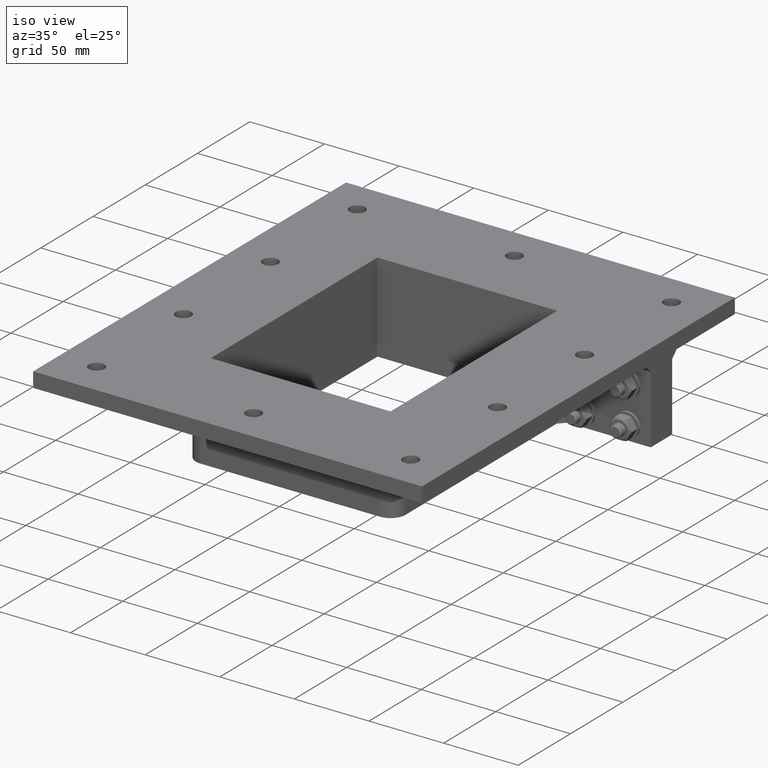
[diagram: clean part render]
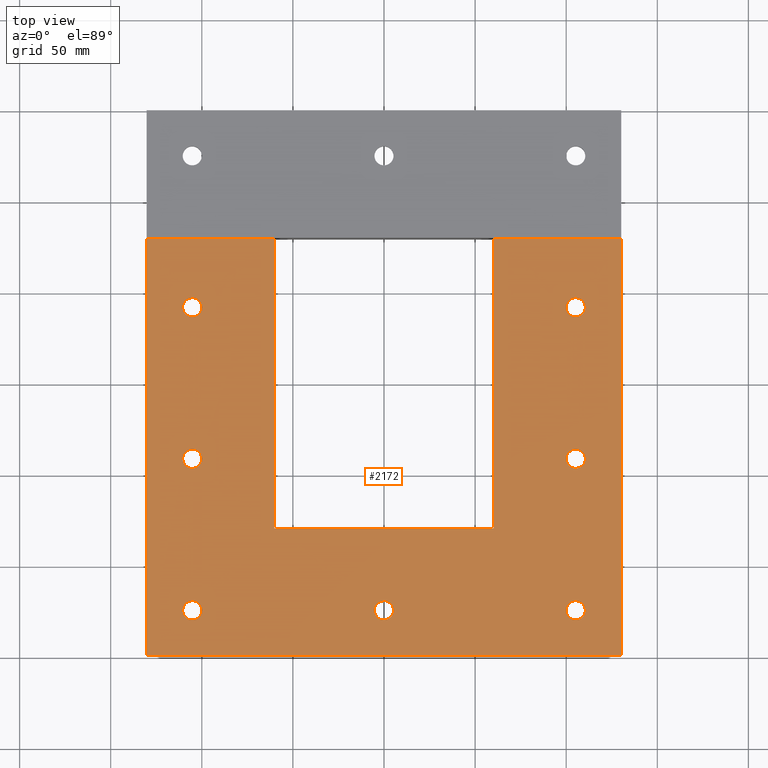
[diagram: tour spotlight — one face highlighted and labeled with its STEP entity id]
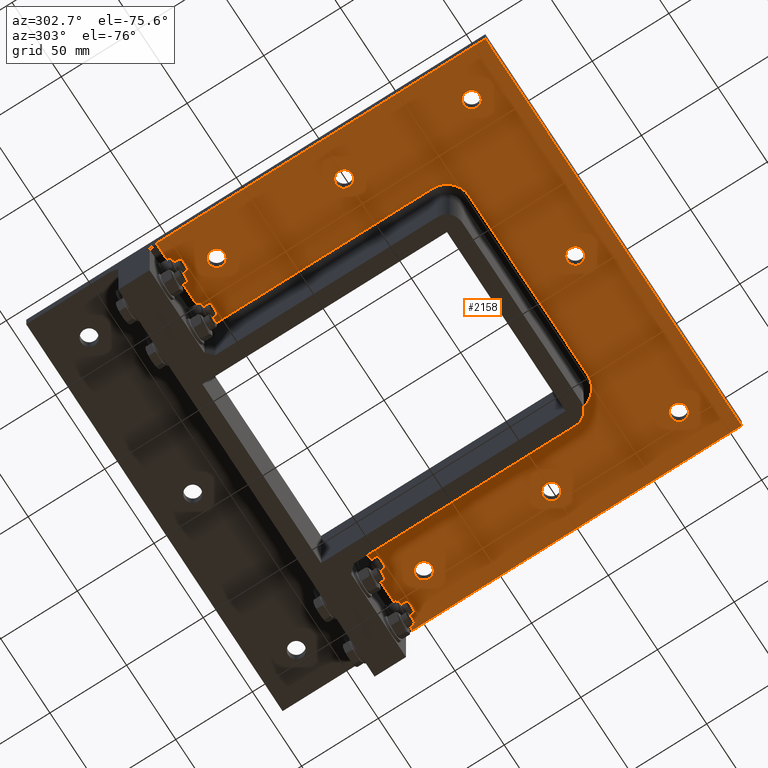
[diagram: tour spotlight — one face highlighted and labeled with its STEP entity id]
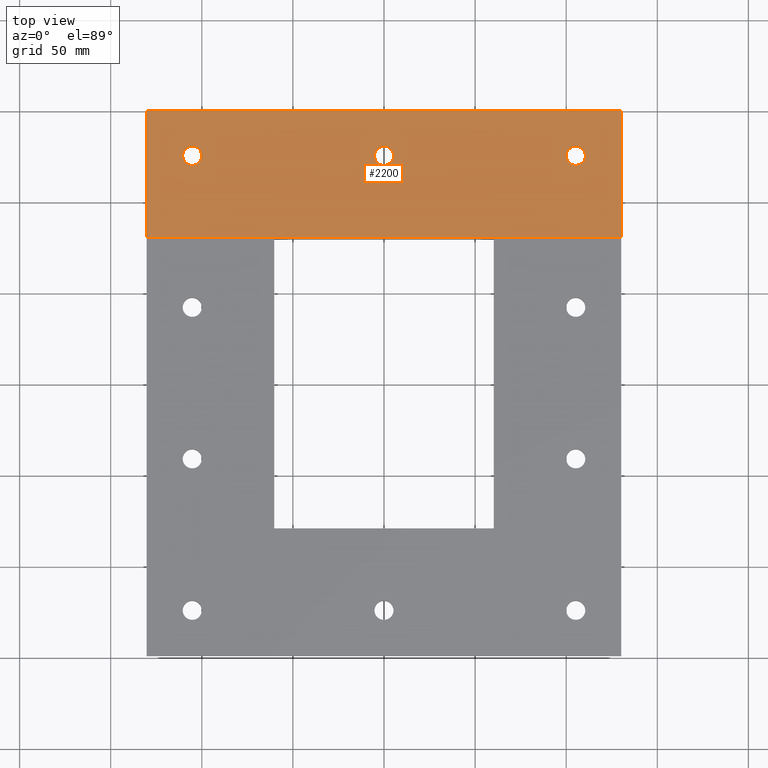
[diagram: tour spotlight — one face highlighted and labeled with its STEP entity id]
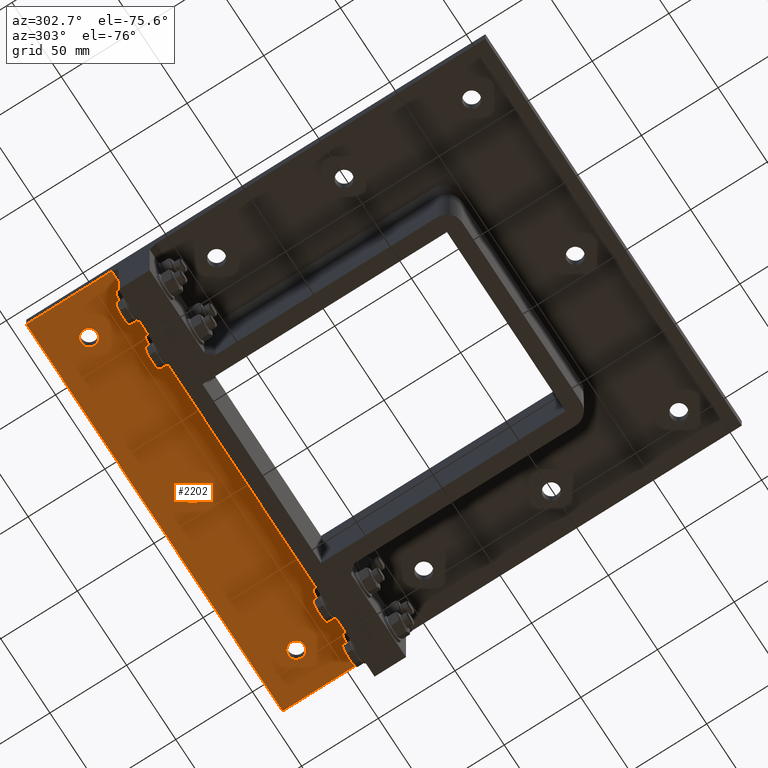
[diagram: tour spotlight — one face highlighted and labeled with its STEP entity id]
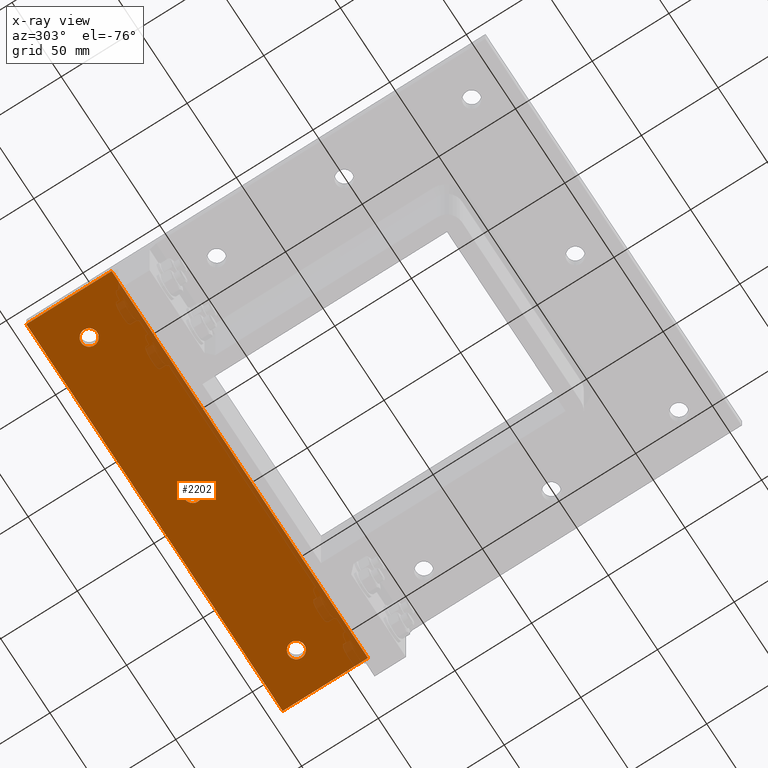
[diagram: x-ray of the same camera — body ghosted, this tour face saturated]
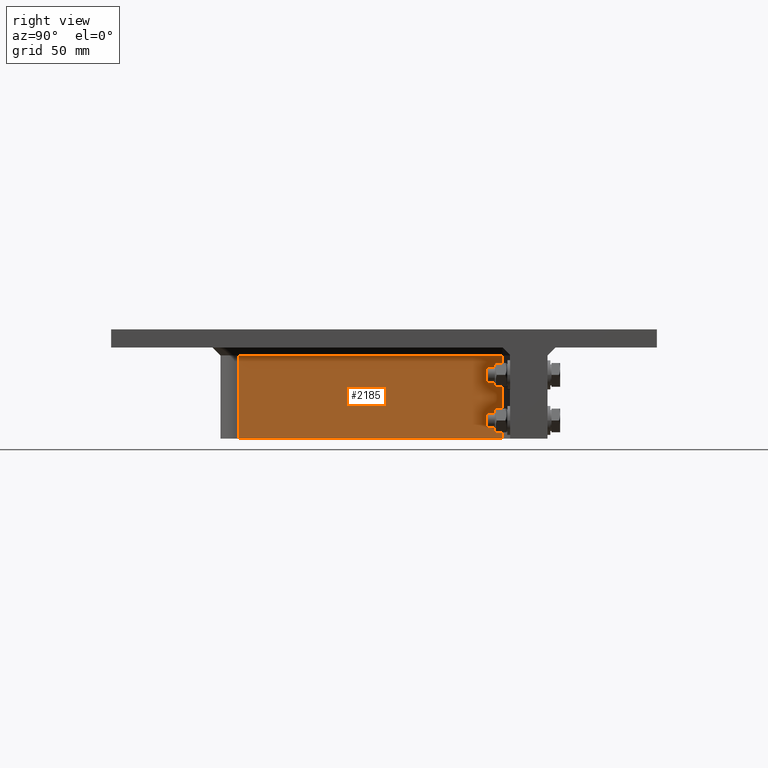
[diagram: tour spotlight — one face highlighted and labeled with its STEP entity id]
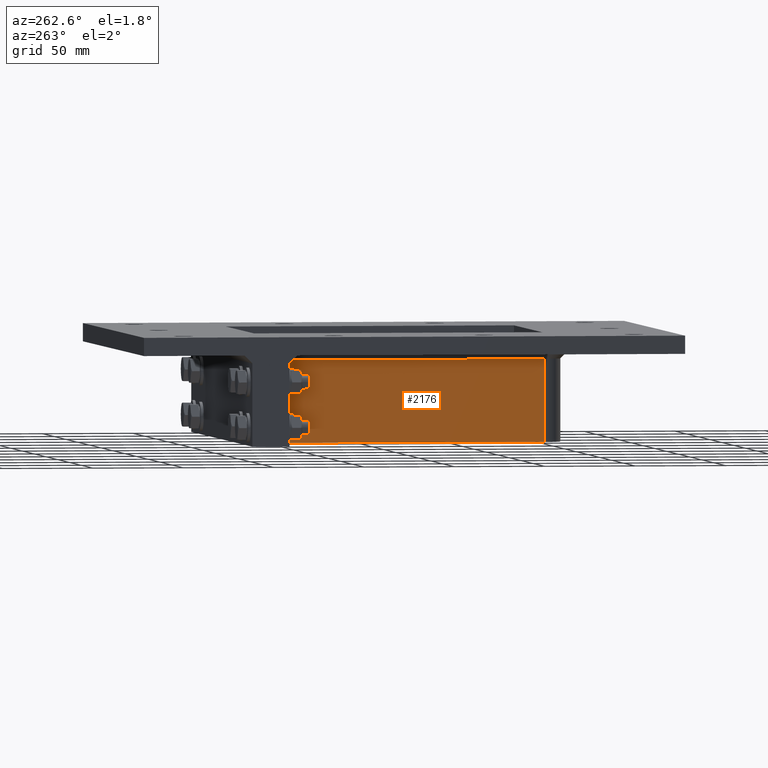
[diagram: tour spotlight — one face highlighted and labeled with its STEP entity id]
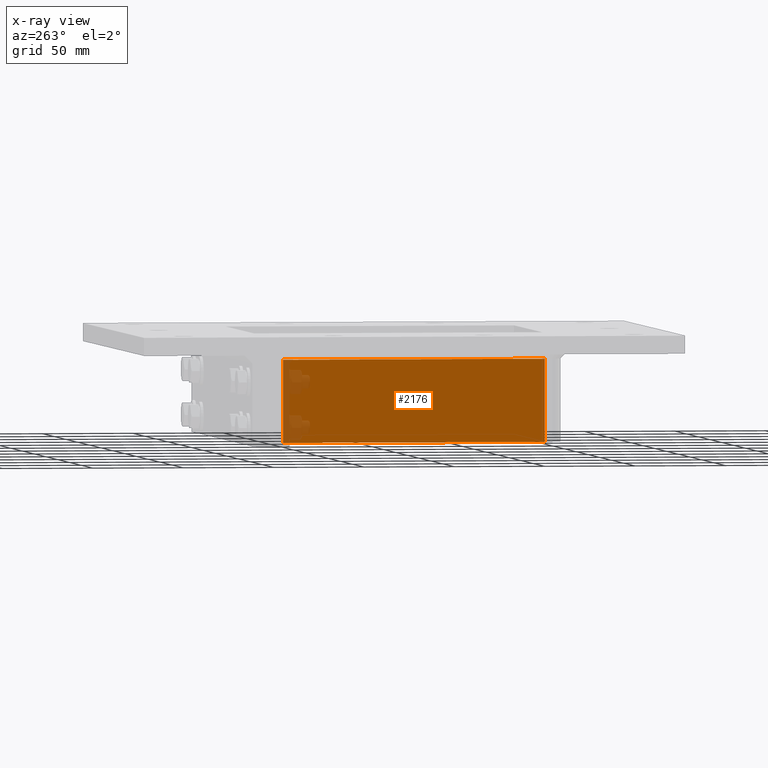
[diagram: x-ray of the same camera — body ghosted, this tour face saturated]
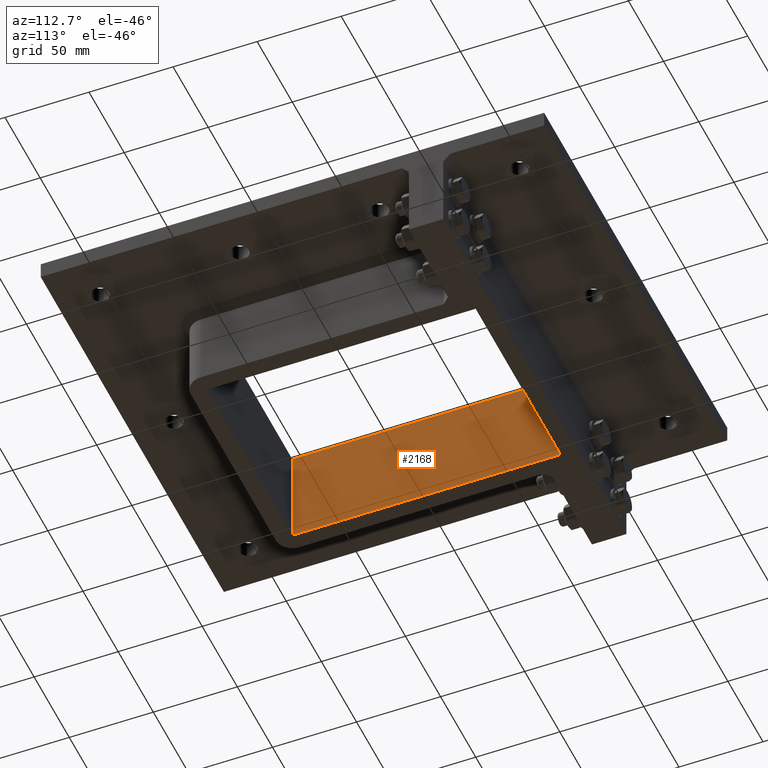
[diagram: tour spotlight — one face highlighted and labeled with its STEP entity id]
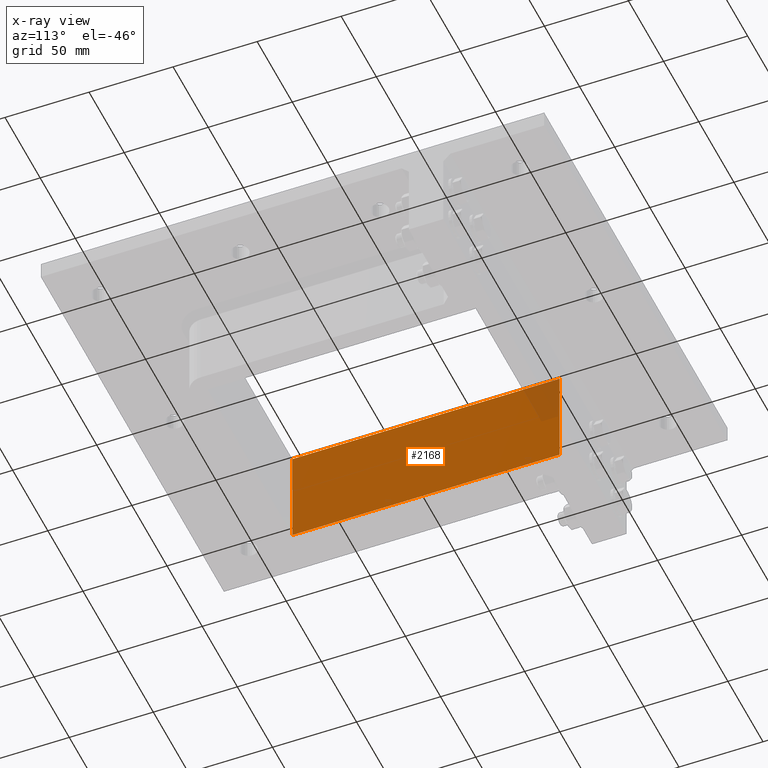
[diagram: x-ray of the same camera — body ghosted, this tour face saturated]
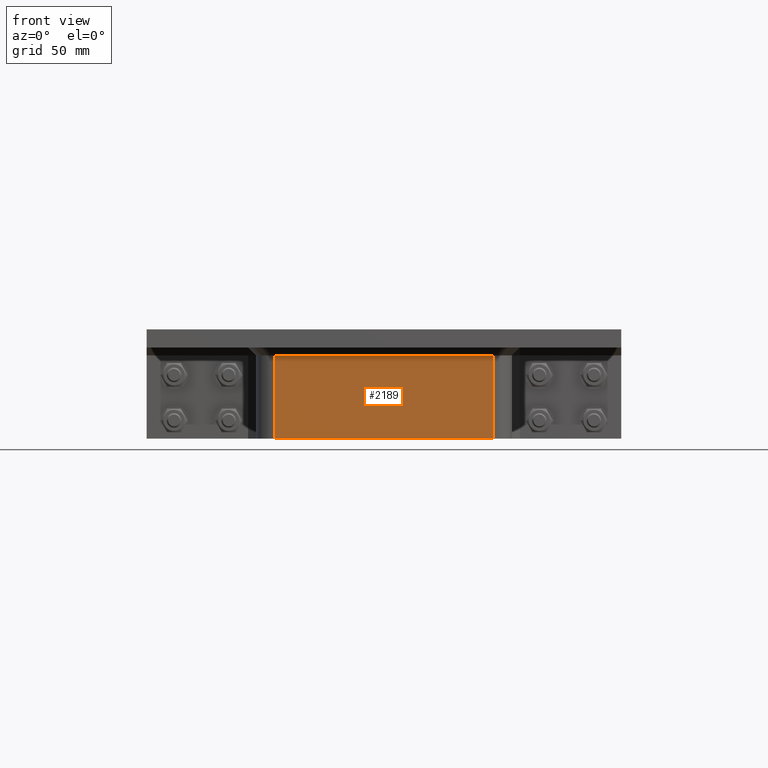
[diagram: tour spotlight — one face highlighted and labeled with its STEP entity id]
A machine part: a face-by-face anatomy tour. The part has 404 B-rep faces; the first image is the clean iso view, then the 8 largest visible faces are spotlighted one at a time (largest first), each with its STEP entity span.

Face 1 — top view, entity #2172. In plain terms, the highlighted planar face has unit normal (0, 0, 1).
Definition (entity closure, byte-faithful):
#185=FACE_BOUND('',#516,.T.);
#186=FACE_BOUND('',#517,.T.);
#187=FACE_BOUND('',#518,.T.);
#188=FACE_BOUND('',#519,.T.);
#189=FACE_BOUND('',#520,.T.);
#190=FACE_BOUND('',#521,.T.);
#191=FACE_BOUND('',#522,.T.);
#273=CIRCLE('',#2493,5.25);
#274=CIRCLE('',#2494,5.25);
#275=CIRCLE('',#2495,5.25);
#276=CIRCLE('',#2496,5.25);
#277=CIRCLE('',#2497,5.25);
#278=CIRCLE('',#2498,5.25);
#279=CIRCLE('',#2499,5.25);
#380=FACE_OUTER_BOUND('',#515,.T.);
#515=EDGE_LOOP('',(#1635,#1636,#1637,#1638,#1639,#1640,#1641,#1642));
#516=EDGE_LOOP('',(#1643));
#517=EDGE_LOOP('',(#1644));
#518=EDGE_LOOP('',(#1645));
#519=EDGE_LOOP('',(#1646));
#520=EDGE_LOOP('',(#1647));
#521=EDGE_LOOP('',(#1648));
#522=EDGE_LOOP('',(#1649));
#711=LINE('',#3479,#883);
#716=LINE('',#3489,#888);
#719=LINE('',#3496,#891);
#730=LINE('',#3518,#902);
#731=LINE('',#3520,#903);
#732=LINE('',#3522,#904);
#733=LINE('',#3523,#905);
#734=LINE('',#3524,#906);
#883=VECTOR('',#2824,10.);
#888=VECTOR('',#2831,10.);
#891=VECTOR('',#2836,10.);
#902=VECTOR('',#2855,10.);
#903=VECTOR('',#2856,10.);
#904=VECTOR('',#2857,10.);
#905=VECTOR('',#2858,10.);
#906=VECTOR('',#2859,10.);
#1061=VERTEX_POINT('',#3477);
#1062=VERTEX_POINT('',#3478);
#1065=VERTEX_POINT('',#3486);
#1066=VERTEX_POINT('',#3488);
#1068=VERTEX_POINT('',#3494);
#1069=VERTEX_POINT('',#3495);
#1077=VERTEX_POINT('',#3519);
#1078=VERTEX_POINT('',#3521);
#1079=VERTEX_POINT('',#3525);
#1080=VERTEX_POINT('',#3527);
#1081=VERTEX_POINT('',#3529);
#1082=VERTEX_POINT('',#3531);
#1083=VERTEX_POINT('',#3533);
#1084=VERTEX_POINT('',#3535);
#1085=VERTEX_POINT('',#3537);
#1271=EDGE_CURVE('',#1061,#1062,#711,.T.);
#1276=EDGE_CURVE('',#1066,#1065,#716,.T.);
#1279=EDGE_CURVE('',#1068,#1069,#719,.T.);
#1292=EDGE_CURVE('',#1065,#1068,#730,.T.);
#1293=EDGE_CURVE('',#1069,#1077,#731,.T.);
#1294=EDGE_CURVE('',#1077,#1078,#732,.T.);
#1295=EDGE_CURVE('',#1078,#1061,#733,.T.);
#1296=EDGE_CURVE('',#1062,#1066,#734,.T.);
#1297=EDGE_CURVE('',#1079,#1079,#273,.T.);
#1298=EDGE_CURVE('',#1080,#1080,#274,.T.);
#1299=EDGE_CURVE('',#1081,#1081,#275,.T.);
#1300=EDGE_CURVE('',#1082,#1082,#276,.T.);
#1301=EDGE_CURVE('',#1083,#1083,#277,.T.);
#1302=EDGE_CURVE('',#1084,#1084,#278,.T.);
#1303=EDGE_CURVE('',#1085,#1085,#279,.T.);
#1635=ORIENTED_EDGE('',*,*,#1276,.T.);
#1636=ORIENTED_EDGE('',*,*,#1292,.T.);
#1637=ORIENTED_EDGE('',*,*,#1279,.T.);
#1638=ORIENTED_EDGE('',*,*,#1293,.T.);
#1639=ORIENTED_EDGE('',*,*,#1294,.T.);
#1640=ORIENTED_EDGE('',*,*,#1295,.T.);
#1641=ORIENTED_EDGE('',*,*,#1271,.T.);
#1642=ORIENTED_EDGE('',*,*,#1296,.T.);
#1643=ORIENTED_EDGE('',*,*,#1297,.T.);
#1644=ORIENTED_EDGE('',*,*,#1298,.T.);
#1645=ORIENTED_EDGE('',*,*,#1299,.T.);
#1646=ORIENTED_EDGE('',*,*,#1300,.T.);
#1647=ORIENTED_EDGE('',*,*,#1301,.T.);
#1648=ORIENTED_EDGE('',*,*,#1302,.T.);
#1649=ORIENTED_EDGE('',*,*,#1303,.T.);
#2096=PLANE('',#2492);
#2172=ADVANCED_FACE('',(#380,#185,#186,#187,#188,#189,#190,#191),#2096,
 .T.);
#2492=AXIS2_PLACEMENT_3D('',#3517,#2853,#2854);
#2493=AXIS2_PLACEMENT_3D('',#3526,#2860,#2861);
#2494=AXIS2_PLACEMENT_3D('',#3528,#2862,#2863);
#2495=AXIS2_PLACEMENT_3D('',#3530,#2864,#2865);
#2496=AXIS2_PLACEMENT_3D('',#3532,#2866,#2867);
#2497=AXIS2_PLACEMENT_3D('',#3534,#2868,#2869);
#2498=AXIS2_PLACEMENT_3D('',#3536,#2870,#2871);
#2499=AXIS2_PLACEMENT_3D('',#3538,#2872,#2873);
#2824=DIRECTION('',(-2.78425836896591E-16,1.,0.));
#2831=DIRECTION('',(2.37242983559299E-16,-1.,0.));
#2836=DIRECTION('',(-1.18621491779649E-16,1.,0.));
#2853=DIRECTION('center_axis',(0.,0.,1.));
#2854=DIRECTION('ref_axis',(1.,0.,0.));
#2855=DIRECTION('',(1.,-6.81902817428119E-17,0.));
#2856=DIRECTION('',(-1.,0.,0.));
#2857=DIRECTION('',(1.11370334758636E-16,-1.,0.));
#2858=DIRECTION('',(-1.,7.37077526722096E-17,0.));
#2859=DIRECTION('',(-1.,0.,0.));
#2860=DIRECTION('center_axis',(0.,0.,-1.));
#2861=DIRECTION('ref_axis',(1.,0.,0.));
#2862=DIRECTION('center_axis',(0.,0.,-1.));
#2863=DIRECTION('ref_axis',(1.,0.,0.));
#2864=DIRECTION('center_axis',(0.,0.,-1.));
#2865=DIRECTION('ref_axis',(1.,0.,0.));
#2866=DIRECTION('center_axis',(0.,0.,-1.));
#2867=DIRECTION('ref_axis',(1.,0.,0.));
#2868=DIRECTION('center_axis',(0.,0.,-1.));
#2869=DIRECTION('ref_axis',(1.,0.,0.));
#2870=DIRECTION('center_axis',(0.,0.,-1.));
#2871=DIRECTION('ref_axis',(1.,0.,0.));
#2872=DIRECTION('center_axis',(0.,0.,-1.));
#2873=DIRECTION('ref_axis',(1.,0.,0.));
#3477=CARTESIAN_POINT('',(-60.25,-79.75,0.));
#3478=CARTESIAN_POINT('',(-60.25,79.25,0.));
#3479=CARTESIAN_POINT('',(-60.25,-39.875,0.));
#3486=CARTESIAN_POINT('',(-130.25,-149.75,0.));
#3488=CARTESIAN_POINT('',(-130.25,79.25,0.));
#3489=CARTESIAN_POINT('',(-130.25,149.75,0.));
#3494=CARTESIAN_POINT('',(130.25,-149.75,0.));
#3495=CARTESIAN_POINT('',(130.25,79.25,0.));
#3496=CARTESIAN_POINT('',(130.25,-149.75,0.));
#3517=CARTESIAN_POINT('Origin',(-4.44089209850063E-15,8.88178419700125E-15,
0.));
#3518=CARTESIAN_POINT('',(-130.25,-149.75,0.));
#3519=CARTESIAN_POINT('',(60.25,79.25,0.));
#3520=CARTESIAN_POINT('',(65.125,79.25,0.));
#3521=CARTESIAN_POINT('',(60.25,-79.75,0.));
#3522=CARTESIAN_POINT('',(60.25,39.875,0.));
#3523=CARTESIAN_POINT('',(30.125,-79.75,0.));
#3524=CARTESIAN_POINT('',(65.125,79.25,0.));
#3525=CARTESIAN_POINT('',(-110.5,-124.75,0.));
#3526=CARTESIAN_POINT('Origin',(-105.25,-124.75,0.));
#3527=CARTESIAN_POINT('',(-110.5,-41.5833333333333,0.));
#3528=CARTESIAN_POINT('Origin',(-105.25,-41.5833333333333,0.));
#3529=CARTESIAN_POINT('',(-110.5,41.5833333333333,0.));
#3530=CARTESIAN_POINT('Origin',(-105.25,41.5833333333333,0.));
#3531=CARTESIAN_POINT('',(-5.25,-124.75,0.));
#3532=CARTESIAN_POINT('Origin',(0.,-124.75,0.));
#3533=CARTESIAN_POINT('',(100.,-124.75,0.));
#3534=CARTESIAN_POINT('Origin',(105.25,-124.75,0.));
#3535=CARTESIAN_POINT('',(100.,41.5833333333333,0.));
#3536=CARTESIAN_POINT('Origin',(105.25,41.5833333333333,0.));
#3537=CARTESIAN_POINT('',(100.,-41.5833333333334,0.));
#3538=CARTESIAN_POINT('Origin',(105.25,-41.5833333333334,0.));

Face 2 — auxiliary view, entity #2158. In plain terms, the highlighted planar face has unit normal (0, 0, 1).
Definition (entity closure, byte-faithful):
#174=FACE_BOUND('',#491,.T.);
#175=FACE_BOUND('',#492,.T.);
#176=FACE_BOUND('',#493,.T.);
#177=FACE_BOUND('',#494,.T.);
#178=FACE_BOUND('',#495,.T.);
#179=FACE_BOUND('',#496,.T.);
#180=FACE_BOUND('',#497,.T.);
#245=CIRCLE('',#2444,14.3);
#247=CIRCLE('',#2448,14.3);
#252=CIRCLE('',#2458,5.25);
#253=CIRCLE('',#2459,5.25);
#254=CIRCLE('',#2460,5.25);
#255=CIRCLE('',#2461,5.25);
#256=CIRCLE('',#2462,5.25);
#257=CIRCLE('',#2463,5.25);
#258=CIRCLE('',#2464,5.25);
#366=FACE_OUTER_BOUND('',#490,.T.);
#490=EDGE_LOOP('',(#1544,#1545,#1546,#1547,#1548,#1549,#1550,#1551,#1552,
#1553));
#491=EDGE_LOOP('',(#1554));
#492=EDGE_LOOP('',(#1555));
#493=EDGE_LOOP('',(#1556));
#494=EDGE_LOOP('',(#1557));
#495=EDGE_LOOP('',(#1558));
#496=EDGE_LOOP('',(#1559));
#497=EDGE_LOOP('',(#1560));
#673=LINE('',#3347,#845);
#682=LINE('',#3366,#854);
#686=LINE('',#3378,#858);
#688=LINE('',#3386,#860);
#694=LINE('',#3398,#866);
#698=LINE('',#3414,#870);
#699=LINE('',#3416,#871);
#700=LINE('',#3417,#872);
#845=VECTOR('',#2690,10.);
#854=VECTOR('',#2705,10.);
#858=VECTOR('',#2717,10.);
#860=VECTOR('',#2727,10.);
#866=VECTOR('',#2737,10.);
#870=VECTOR('',#2753,10.);
#871=VECTOR('',#2754,10.);
#872=VECTOR('',#2755,10.);
#1012=VERTEX_POINT('',#3336);
#1015=VERTEX_POINT('',#3343);
#1019=VERTEX_POINT('',#3355);
#1022=VERTEX_POINT('',#3362);
#1024=VERTEX_POINT('',#3368);
#1026=VERTEX_POINT('',#3374);
#1028=VERTEX_POINT('',#3380);
#1033=VERTEX_POINT('',#3396);
#1039=VERTEX_POINT('',#3413);
#1040=VERTEX_POINT('',#3415);
#1041=VERTEX_POINT('',#3418);
#1042=VERTEX_POINT('',#3420);
#1043=VERTEX_POINT('',#3422);
#1044=VERTEX_POINT('',#3424);
#1045=VERTEX_POINT('',#3426);
#1046=VERTEX_POINT('',#3428);
#1047=VERTEX_POINT('',#3430);
#1206=EDGE_CURVE('',#1012,#1015,#673,.T.);
#1215=EDGE_CURVE('',#1019,#1022,#682,.T.);
#1218=EDGE_CURVE('',#1022,#1024,#245,.T.);
#1221=EDGE_CURVE('',#1024,#1026,#686,.T.);
#1224=EDGE_CURVE('',#1026,#1028,#247,.T.);
#1225=EDGE_CURVE('',#1028,#1012,#688,.T.);
#1231=EDGE_CURVE('',#1033,#1019,#694,.T.);
#1239=EDGE_CURVE('',#1033,#1039,#698,.T.);
#1240=EDGE_CURVE('',#1039,#1040,#699,.T.);
#1241=EDGE_CURVE('',#1040,#1015,#700,.T.);
#1242=EDGE_CURVE('',#1041,#1041,#252,.T.);
#1243=EDGE_CURVE('',#1042,#1042,#253,.T.);
#1244=EDGE_CURVE('',#1043,#1043,#254,.T.);
#1245=EDGE_CURVE('',#1044,#1044,#255,.T.);
#1246=EDGE_CURVE('',#1045,#1045,#256,.T.);
#1247=EDGE_CURVE('',#1046,#1046,#257,.T.);
#1248=EDGE_CURVE('',#1047,#1047,#258,.T.);
#1544=ORIENTED_EDGE('',*,*,#1206,.F.);
#1545=ORIENTED_EDGE('',*,*,#1225,.F.);
#1546=ORIENTED_EDGE('',*,*,#1224,.F.);
#1547=ORIENTED_EDGE('',*,*,#1221,.F.);
#1548=ORIENTED_EDGE('',*,*,#1218,.F.);
#1549=ORIENTED_EDGE('',*,*,#1215,.F.);
#1550=ORIENTED_EDGE('',*,*,#1231,.F.);
#1551=ORIENTED_EDGE('',*,*,#1239,.T.);
#1552=ORIENTED_EDGE('',*,*,#1240,.T.);
#1553=ORIENTED_EDGE('',*,*,#1241,.T.);
#1554=ORIENTED_EDGE('',*,*,#1242,.T.);
#1555=ORIENTED_EDGE('',*,*,#1243,.T.);
#1556=ORIENTED_EDGE('',*,*,#1244,.T.);
#1557=ORIENTED_EDGE('',*,*,#1245,.T.);
#1558=ORIENTED_EDGE('',*,*,#1246,.T.);
#1559=ORIENTED_EDGE('',*,*,#1247,.T.);
#1560=ORIENTED_EDGE('',*,*,#1248,.T.);
#2090=PLANE('',#2457);
#2158=ADVANCED_FACE('',(#366,#174,#175,#176,#177,#178,#179,#180),#2090,
 .F.);
#2444=AXIS2_PLACEMENT_3D('',#3372,#2711,#2712);
#2448=AXIS2_PLACEMENT_3D('',#3384,#2723,#2724);
#2457=AXIS2_PLACEMENT_3D('',#3412,#2751,#2752);
#2458=AXIS2_PLACEMENT_3D('',#3419,#2756,#2757);
#2459=AXIS2_PLACEMENT_3D('',#3421,#2758,#2759);
#2460=AXIS2_PLACEMENT_3D('',#3423,#2760,#2761);
#2461=AXIS2_PLACEMENT_3D('',#3425,#2762,#2763);
#2462=AXIS2_PLACEMENT_3D('',#3427,#2764,#2765);
#2463=AXIS2_PLACEMENT_3D('',#3429,#2766,#2767);
#2464=AXIS2_PLACEMENT_3D('',#3431,#2768,#2769);
#2690=DIRECTION('',(-1.,0.,0.));
#2705=DIRECTION('',(-1.11370334758636E-16,-1.,0.));
#2711=DIRECTION('center_axis',(0.,0.,-1.));
#2712=DIRECTION('ref_axis',(0.,-1.,0.));
#2717=DIRECTION('',(-1.,0.,0.));
#2723=DIRECTION('center_axis',(0.,0.,-1.));
#2724=DIRECTION('ref_axis',(-1.,0.,0.));
#2727=DIRECTION('',(1.67055502137955E-16,1.,0.));
#2737=DIRECTION('',(-1.,-1.26882631385732E-16,0.));
#2751=DIRECTION('center_axis',(0.,0.,1.));
#2752=DIRECTION('ref_axis',(1.,0.,0.));
#2753=DIRECTION('',(1.18621491779649E-16,-1.,0.));
#2754=DIRECTION('',(-1.,6.81902817428119E-17,0.));
#2755=DIRECTION('',(-2.37242983559299E-16,1.,0.));
#2756=DIRECTION('center_axis',(0.,0.,1.));
#2757=DIRECTION('ref_axis',(1.,0.,0.));
#2758=DIRECTION('center_axis',(0.,0.,1.));
#2759=DIRECTION('ref_axis',(1.,0.,0.));
#2760=DIRECTION('center_axis',(0.,0.,1.));
#2761=DIRECTION('ref_axis',(1.,0.,0.));
#2762=DIRECTION('center_axis',(0.,0.,1.));
#2763=DIRECTION('ref_axis',(1.,0.,0.));
#2764=DIRECTION('center_axis',(0.,0.,1.));
#2765=DIRECTION('ref_axis',(1.,0.,0.));
#2766=DIRECTION('center_axis',(0.,0.,1.));
#2767=DIRECTION('ref_axis',(1.,0.,0.));
#2768=DIRECTION('center_axis',(0.,0.,1.));
#2769=DIRECTION('ref_axis',(1.,0.,0.));
#3336=CARTESIAN_POINT('',(-74.55,64.95,-10.));
#3343=CARTESIAN_POINT('',(-130.25,64.95,-10.));
#3347=CARTESIAN_POINT('',(-30.125,64.95,-10.));
#3355=CARTESIAN_POINT('',(74.55,64.95,-10.));
#3362=CARTESIAN_POINT('',(74.55,-79.75,-10.));
#3366=CARTESIAN_POINT('',(74.55,39.875,-10.));
#3368=CARTESIAN_POINT('',(60.25,-94.05,-10.));
#3372=CARTESIAN_POINT('Origin',(60.25,-79.75,-10.));
#3374=CARTESIAN_POINT('',(-60.25,-94.05,-10.));
#3378=CARTESIAN_POINT('',(30.125,-94.05,-10.));
#3380=CARTESIAN_POINT('',(-74.55,-79.75,-10.));
#3384=CARTESIAN_POINT('Origin',(-60.25,-79.75,-10.));
#3386=CARTESIAN_POINT('',(-74.55,-39.875,-10.));
#3396=CARTESIAN_POINT('',(130.25,64.95,-10.));
#3398=CARTESIAN_POINT('',(65.125,64.95,-10.));
#3412=CARTESIAN_POINT('Origin',(-3.5527136788005E-14,-1.77635683940025E-14,
-10.));
#3413=CARTESIAN_POINT('',(130.25,-149.75,-10.));
#3414=CARTESIAN_POINT('',(130.25,-149.75,-10.));
#3415=CARTESIAN_POINT('',(-130.25,-149.75,-10.));
#3416=CARTESIAN_POINT('',(-130.25,-149.75,-10.));
#3417=CARTESIAN_POINT('',(-130.25,149.75,-10.));
#3418=CARTESIAN_POINT('',(100.,-41.5833333333334,-10.));
#3419=CARTESIAN_POINT('Origin',(105.25,-41.5833333333334,-10.));
#3420=CARTESIAN_POINT('',(100.,41.5833333333333,-10.));
#3421=CARTESIAN_POINT('Origin',(105.25,41.5833333333333,-10.));
#3422=CARTESIAN_POINT('',(100.,-124.75,-10.));
#3423=CARTESIAN_POINT('Origin',(105.25,-124.75,-10.));
#3424=CARTESIAN_POINT('',(-5.25,-124.75,-10.));
#3425=CARTESIAN_POINT('Origin',(0.,-124.75,-10.));
#3426=CARTESIAN_POINT('',(-110.5,41.5833333333333,-10.));
#3427=CARTESIAN_POINT('Origin',(-105.25,41.5833333333333,-10.));
#3428=CARTESIAN_POINT('',(-110.5,-41.5833333333333,-10.));
#3429=CARTESIAN_POINT('Origin',(-105.25,-41.5833333333333,-10.));
#3430=CARTESIAN_POINT('',(-110.5,-124.75,-10.));
#3431=CARTESIAN_POINT('Origin',(-105.25,-124.75,-10.));

Face 3 — top view, entity #2200. In plain terms, the highlighted planar face has unit normal (0, 0, 1).
Definition (entity closure, byte-faithful):
#208=FACE_BOUND('',#567,.T.);
#209=FACE_BOUND('',#568,.T.);
#210=FACE_BOUND('',#569,.T.);
#296=CIRCLE('',#2545,5.25);
#297=CIRCLE('',#2546,5.25);
#298=CIRCLE('',#2547,5.25);
#408=FACE_OUTER_BOUND('',#566,.T.);
#566=EDGE_LOOP('',(#1774,#1775,#1776,#1777));
#567=EDGE_LOOP('',(#1778));
#568=EDGE_LOOP('',(#1779));
#569=EDGE_LOOP('',(#1780));
#763=LINE('',#3636,#935);
#764=LINE('',#3638,#936);
#765=LINE('',#3640,#937);
#766=LINE('',#3641,#938);
#935=VECTOR('',#2992,10.);
#936=VECTOR('',#2993,10.);
#937=VECTOR('',#2994,10.);
#938=VECTOR('',#2995,10.);
#1108=VERTEX_POINT('',#3634);
#1109=VERTEX_POINT('',#3635);
#1110=VERTEX_POINT('',#3637);
#1111=VERTEX_POINT('',#3639);
#1112=VERTEX_POINT('',#3642);
#1113=VERTEX_POINT('',#3644);
#1114=VERTEX_POINT('',#3646);
#1348=EDGE_CURVE('',#1108,#1109,#763,.T.);
#1349=EDGE_CURVE('',#1109,#1110,#764,.T.);
#1350=EDGE_CURVE('',#1110,#1111,#765,.T.);
#1351=EDGE_CURVE('',#1111,#1108,#766,.T.);
#1352=EDGE_CURVE('',#1112,#1112,#296,.T.);
#1353=EDGE_CURVE('',#1113,#1113,#297,.T.);
#1354=EDGE_CURVE('',#1114,#1114,#298,.T.);
#1774=ORIENTED_EDGE('',*,*,#1348,.T.);
#1775=ORIENTED_EDGE('',*,*,#1349,.T.);
#1776=ORIENTED_EDGE('',*,*,#1350,.T.);
#1777=ORIENTED_EDGE('',*,*,#1351,.T.);
#1778=ORIENTED_EDGE('',*,*,#1352,.T.);
#1779=ORIENTED_EDGE('',*,*,#1353,.T.);
#1780=ORIENTED_EDGE('',*,*,#1354,.T.);
#2107=PLANE('',#2544);
#2200=ADVANCED_FACE('',(#408,#208,#209,#210),#2107,.T.);
#2544=AXIS2_PLACEMENT_3D('',#3633,#2990,#2991);
#2545=AXIS2_PLACEMENT_3D('',#3643,#2996,#2997);
#2546=AXIS2_PLACEMENT_3D('',#3645,#2998,#2999);
#2547=AXIS2_PLACEMENT_3D('',#3647,#3000,#3001);
#2990=DIRECTION('center_axis',(0.,0.,1.));
#2991=DIRECTION('ref_axis',(1.,0.,0.));
#2992=DIRECTION('',(-2.37242983559299E-16,1.,0.));
#2993=DIRECTION('',(-1.,-1.36380563485624E-16,0.));
#2994=DIRECTION('',(3.55864475338948E-16,-1.,0.));
#2995=DIRECTION('',(1.,2.21123258016629E-16,0.));
#2996=DIRECTION('center_axis',(0.,0.,-1.));
#2997=DIRECTION('ref_axis',(1.,0.,0.));
#2998=DIRECTION('center_axis',(0.,0.,-1.));
#2999=DIRECTION('ref_axis',(1.,0.,0.));
#3000=DIRECTION('center_axis',(0.,0.,-1.));
#3001=DIRECTION('ref_axis',(1.,0.,0.));
#3633=CARTESIAN_POINT('Origin',(-1.33226762955019E-14,1.77635683940025E-14,
0.));
#3634=CARTESIAN_POINT('',(130.25,79.75,0.));
#3635=CARTESIAN_POINT('',(130.25,149.75,0.));
#3636=CARTESIAN_POINT('',(130.25,-149.75,0.));
#3637=CARTESIAN_POINT('',(-130.25,149.75,0.));
#3638=CARTESIAN_POINT('',(130.25,149.75,0.));
#3639=CARTESIAN_POINT('',(-130.25,79.75,0.));
#3640=CARTESIAN_POINT('',(-130.25,149.75,0.));
#3641=CARTESIAN_POINT('',(-30.125,79.75,0.));
#3642=CARTESIAN_POINT('',(-110.5,124.75,0.));
#3643=CARTESIAN_POINT('Origin',(-105.25,124.75,0.));
#3644=CARTESIAN_POINT('',(100.,124.75,0.));
#3645=CARTESIAN_POINT('Origin',(105.25,124.75,0.));
#3646=CARTESIAN_POINT('',(-5.2499999999998,124.75,0.));
#3647=CARTESIAN_POINT('Origin',(1.95399252334028E-13,124.75,0.));

Face 4 — auxiliary view, entity #2202. An x-ray twin of the same camera follows (body ghosted, this face saturated) — the face is partly hidden behind the body. In plain terms, the highlighted planar face has unit normal (0, 0, 1).
Definition (entity closure, byte-faithful):
#211=FACE_BOUND('',#572,.T.);
#212=FACE_BOUND('',#573,.T.);
#213=FACE_BOUND('',#574,.T.);
#299=CIRCLE('',#2550,5.25);
#300=CIRCLE('',#2551,5.25);
#301=CIRCLE('',#2552,5.25);
#410=FACE_OUTER_BOUND('',#571,.T.);
#571=EDGE_LOOP('',(#1788,#1789,#1790,#1791));
#572=EDGE_LOOP('',(#1792));
#573=EDGE_LOOP('',(#1793));
#574=EDGE_LOOP('',(#1794));
#751=LINE('',#3578,#923);
#767=LINE('',#3650,#939);
#771=LINE('',#3657,#943);
#772=LINE('',#3658,#944);
#923=VECTOR('',#2928,10.);
#939=VECTOR('',#3004,10.);
#943=VECTOR('',#3010,10.);
#944=VECTOR('',#3011,10.);
#1086=VERTEX_POINT('',#3571);
#1089=VERTEX_POINT('',#3576);
#1115=VERTEX_POINT('',#3649);
#1117=VERTEX_POINT('',#3656);
#1118=VERTEX_POINT('',#3659);
#1119=VERTEX_POINT('',#3661);
#1120=VERTEX_POINT('',#3663);
#1320=EDGE_CURVE('',#1089,#1086,#751,.T.);
#1355=EDGE_CURVE('',#1115,#1086,#767,.T.);
#1359=EDGE_CURVE('',#1089,#1117,#771,.T.);
#1360=EDGE_CURVE('',#1117,#1115,#772,.T.);
#1361=EDGE_CURVE('',#1118,#1118,#299,.T.);
#1362=EDGE_CURVE('',#1119,#1119,#300,.T.);
#1363=EDGE_CURVE('',#1120,#1120,#301,.T.);
#1788=ORIENTED_EDGE('',*,*,#1320,.F.);
#1789=ORIENTED_EDGE('',*,*,#1359,.T.);
#1790=ORIENTED_EDGE('',*,*,#1360,.T.);
#1791=ORIENTED_EDGE('',*,*,#1355,.T.);
#1792=ORIENTED_EDGE('',*,*,#1361,.T.);
#1793=ORIENTED_EDGE('',*,*,#1362,.T.);
#1794=ORIENTED_EDGE('',*,*,#1363,.T.);
#2109=PLANE('',#2549);
#2202=ADVANCED_FACE('',(#410,#211,#212,#213),#2109,.F.);
#2549=AXIS2_PLACEMENT_3D('',#3655,#3008,#3009);
#2550=AXIS2_PLACEMENT_3D('',#3660,#3012,#3013);
#2551=AXIS2_PLACEMENT_3D('',#3662,#3014,#3015);
#2552=AXIS2_PLACEMENT_3D('',#3664,#3016,#3017);
#2928=DIRECTION('',(1.,2.94831010688838E-16,0.));
#3004=DIRECTION('',(2.37242983559299E-16,-1.,0.));
#3008=DIRECTION('center_axis',(0.,0.,1.));
#3009=DIRECTION('ref_axis',(1.,0.,0.));
#3010=DIRECTION('',(-3.55864475338948E-16,1.,0.));
#3011=DIRECTION('',(1.,1.36380563485624E-16,0.));
#3012=DIRECTION('center_axis',(0.,0.,1.));
#3013=DIRECTION('ref_axis',(1.,0.,0.));
#3014=DIRECTION('center_axis',(0.,0.,1.));
#3015=DIRECTION('ref_axis',(1.,0.,0.));
#3016=DIRECTION('center_axis',(0.,0.,1.));
#3017=DIRECTION('ref_axis',(1.,0.,0.));
#3571=CARTESIAN_POINT('',(130.25,94.0500000000001,-10.));
#3576=CARTESIAN_POINT('',(-130.25,94.05,-10.));
#3578=CARTESIAN_POINT('',(-30.1249999999999,94.05,-10.));
#3649=CARTESIAN_POINT('',(130.25,149.75,-10.));
#3650=CARTESIAN_POINT('',(130.25,-149.75,-10.));
#3655=CARTESIAN_POINT('Origin',(2.1316282072803E-13,0.,-10.));
#3656=CARTESIAN_POINT('',(-130.25,149.75,-10.));
#3657=CARTESIAN_POINT('',(-130.25,149.75,-10.));
#3658=CARTESIAN_POINT('',(130.25,149.75,-10.));
#3659=CARTESIAN_POINT('',(-110.5,124.75,-10.));
#3660=CARTESIAN_POINT('Origin',(-105.25,124.75,-10.));
#3661=CARTESIAN_POINT('',(100.,124.75,-10.));
#3662=CARTESIAN_POINT('Origin',(105.25,124.75,-10.));
#3663=CARTESIAN_POINT('',(-5.24999999999981,124.75,-10.));
#3664=CARTESIAN_POINT('Origin',(1.95399252334028E-13,124.75,-10.));

Face 5 — right view, entity #2185. In plain terms, the highlighted planar face has unit normal (1, -0, 0).
Definition (entity closure, byte-faithful):
#393=FACE_OUTER_BOUND('',#543,.T.);
#543=EDGE_LOOP('',(#1706,#1707,#1708,#1709));
#681=LINE('',#3365,#853);
#692=LINE('',#3393,#864);
#726=LINE('',#3508,#898);
#745=LINE('',#3562,#917);
#853=VECTOR('',#2704,10.);
#864=VECTOR('',#2733,10.);
#898=VECTOR('',#2845,10.);
#917=VECTOR('',#2910,10.);
#1021=VERTEX_POINT('',#3358);
#1023=VERTEX_POINT('',#3363);
#1030=VERTEX_POINT('',#3389);
#1073=VERTEX_POINT('',#3507);
#1214=EDGE_CURVE('',#1023,#1021,#681,.T.);
#1229=EDGE_CURVE('',#1021,#1030,#692,.T.);
#1286=EDGE_CURVE('',#1030,#1073,#726,.T.);
#1314=EDGE_CURVE('',#1023,#1073,#745,.T.);
#1706=ORIENTED_EDGE('',*,*,#1214,.F.);
#1707=ORIENTED_EDGE('',*,*,#1314,.T.);
#1708=ORIENTED_EDGE('',*,*,#1286,.F.);
#1709=ORIENTED_EDGE('',*,*,#1229,.F.);
#2102=PLANE('',#2512);
#2185=ADVANCED_FACE('',(#393),#2102,.T.);
#2512=AXIS2_PLACEMENT_3D('',#3561,#2908,#2909);
#2704=DIRECTION('',(1.11370334758636E-16,1.,0.));
#2733=DIRECTION('',(0.,0.,-1.));
#2845=DIRECTION('',(-1.11370334758636E-16,-1.,0.));
#2908=DIRECTION('center_axis',(1.,-1.11370334758636E-16,0.));
#2909=DIRECTION('ref_axis',(-1.11370334758636E-16,-1.,0.));
#2910=DIRECTION('',(0.,0.,-1.));
#3358=CARTESIAN_POINT('',(70.25,64.95,-14.3));
#3363=CARTESIAN_POINT('',(70.25,-79.75,-14.3));
#3365=CARTESIAN_POINT('',(70.25,39.875,-14.3));
#3389=CARTESIAN_POINT('',(70.25,64.95,-60.));
#3393=CARTESIAN_POINT('',(70.25,64.95,0.));
#3507=CARTESIAN_POINT('',(70.25,-79.75,-60.));
#3508=CARTESIAN_POINT('',(70.25,-79.75,-60.));
#3561=CARTESIAN_POINT('Origin',(70.25,79.75,0.));
#3562=CARTESIAN_POINT('',(70.25,-79.75,0.));

Face 6 — auxiliary view, entity #2176. An x-ray twin of the same camera follows (body ghosted, this face saturated) — the face is partly hidden behind the body. In plain terms, the highlighted planar face has unit normal (-1, 0, 0).
Definition (entity closure, byte-faithful):
#384=FACE_OUTER_BOUND('',#534,.T.);
#534=EDGE_LOOP('',(#1670,#1671,#1672,#1673));
#675=LINE('',#3352,#847);
#689=LINE('',#3387,#861);
#728=LINE('',#3515,#900);
#737=LINE('',#3545,#909);
#847=VECTOR('',#2694,10.);
#861=VECTOR('',#2728,10.);
#900=VECTOR('',#2851,10.);
#909=VECTOR('',#2884,10.);
#1013=VERTEX_POINT('',#3337);
#1018=VERTEX_POINT('',#3350);
#1029=VERTEX_POINT('',#3381);
#1076=VERTEX_POINT('',#3513);
#1208=EDGE_CURVE('',#1018,#1013,#675,.T.);
#1226=EDGE_CURVE('',#1013,#1029,#689,.T.);
#1290=EDGE_CURVE('',#1076,#1018,#728,.T.);
#1306=EDGE_CURVE('',#1029,#1076,#737,.T.);
#1670=ORIENTED_EDGE('',*,*,#1208,.F.);
#1671=ORIENTED_EDGE('',*,*,#1290,.F.);
#1672=ORIENTED_EDGE('',*,*,#1306,.F.);
#1673=ORIENTED_EDGE('',*,*,#1226,.F.);
#2100=PLANE('',#2503);
#2176=ADVANCED_FACE('',(#384),#2100,.T.);
#2503=AXIS2_PLACEMENT_3D('',#3544,#2882,#2883);
#2694=DIRECTION('',(0.,0.,1.));
#2728=DIRECTION('',(-1.67055502137955E-16,-1.,0.));
#2851=DIRECTION('',(1.67055502137955E-16,1.,0.));
#2882=DIRECTION('center_axis',(-1.,1.67055502137955E-16,0.));
#2883=DIRECTION('ref_axis',(1.67055502137955E-16,1.,0.));
#2884=DIRECTION('',(0.,0.,-1.));
#3337=CARTESIAN_POINT('',(-70.25,64.95,-14.3));
#3350=CARTESIAN_POINT('',(-70.25,64.95,-60.));
#3352=CARTESIAN_POINT('',(-70.25,64.95,0.));
#3381=CARTESIAN_POINT('',(-70.25,-79.75,-14.3));
#3387=CARTESIAN_POINT('',(-70.25,-39.875,-14.3));
#3513=CARTESIAN_POINT('',(-70.25,-79.75,-60.));
#3515=CARTESIAN_POINT('',(-70.25,79.75,-60.));
#3544=CARTESIAN_POINT('Origin',(-70.25,-79.75,0.));
#3545=CARTESIAN_POINT('',(-70.25,-79.75,0.));

Face 7 — auxiliary view, entity #2168. An x-ray twin of the same camera follows (body ghosted, this face saturated) — the face is partly hidden behind the body. In plain terms, the highlighted planar face has unit normal (-1, -0, 0).
Definition (entity closure, byte-faithful):
#376=FACE_OUTER_BOUND('',#511,.T.);
#511=EDGE_LOOP('',(#1601,#1602,#1603,#1604));
#711=LINE('',#3479,#883);
#712=LINE('',#3481,#884);
#713=LINE('',#3483,#885);
#714=LINE('',#3484,#886);
#883=VECTOR('',#2824,10.);
#884=VECTOR('',#2825,10.);
#885=VECTOR('',#2826,10.);
#886=VECTOR('',#2827,10.);
#1061=VERTEX_POINT('',#3477);
#1062=VERTEX_POINT('',#3478);
#1063=VERTEX_POINT('',#3480);
#1064=VERTEX_POINT('',#3482);
#1271=EDGE_CURVE('',#1061,#1062,#711,.T.);
#1272=EDGE_CURVE('',#1061,#1063,#712,.T.);
#1273=EDGE_CURVE('',#1064,#1063,#713,.T.);
#1274=EDGE_CURVE('',#1064,#1062,#714,.T.);
#1601=ORIENTED_EDGE('',*,*,#1271,.F.);
#1602=ORIENTED_EDGE('',*,*,#1272,.T.);
#1603=ORIENTED_EDGE('',*,*,#1273,.F.);
#1604=ORIENTED_EDGE('',*,*,#1274,.T.);
#2092=PLANE('',#2486);
#2168=ADVANCED_FACE('',(#376),#2092,.F.);
#2486=AXIS2_PLACEMENT_3D('',#3476,#2822,#2823);
#2822=DIRECTION('center_axis',(-1.,-2.78425836896591E-16,0.));
#2823=DIRECTION('ref_axis',(-2.78425836896591E-16,1.,0.));
#2824=DIRECTION('',(-2.78425836896591E-16,1.,0.));
#2825=DIRECTION('',(0.,0.,-1.));
#2826=DIRECTION('',(2.78425836896591E-16,-1.,0.));
#2827=DIRECTION('',(0.,0.,1.));
#3476=CARTESIAN_POINT('Origin',(-60.25,-79.75,0.));
#3477=CARTESIAN_POINT('',(-60.25,-79.75,0.));
#3478=CARTESIAN_POINT('',(-60.25,79.25,0.));
#3479=CARTESIAN_POINT('',(-60.25,-39.875,0.));
#3480=CARTESIAN_POINT('',(-60.25,-79.75,-60.));
#3481=CARTESIAN_POINT('',(-60.25,-79.75,0.));
#3482=CARTESIAN_POINT('',(-60.25,79.25,-60.));
#3483=CARTESIAN_POINT('',(-60.25,-39.875,-60.));
#3484=CARTESIAN_POINT('',(-60.25,79.25,0.));

Face 8 — front view, entity #2189. In plain terms, the highlighted planar face has unit normal (0, -1, 0).
Definition (entity closure, byte-faithful):
#397=FACE_OUTER_BOUND('',#547,.T.);
#547=EDGE_LOOP('',(#1722,#1723,#1724,#1725));
#685=LINE('',#3377,#857);
#727=LINE('',#3512,#899);
#746=LINE('',#3564,#918);
#747=LINE('',#3567,#919);
#857=VECTOR('',#2716,10.);
#899=VECTOR('',#2848,10.);
#918=VECTOR('',#2913,10.);
#919=VECTOR('',#2918,10.);
#1025=VERTEX_POINT('',#3369);
#1027=VERTEX_POINT('',#3375);
#1074=VERTEX_POINT('',#3509);
#1075=VERTEX_POINT('',#3511);
#1220=EDGE_CURVE('',#1027,#1025,#685,.T.);
#1288=EDGE_CURVE('',#1074,#1075,#727,.T.);
#1315=EDGE_CURVE('',#1025,#1074,#746,.T.);
#1316=EDGE_CURVE('',#1027,#1075,#747,.T.);
#1722=ORIENTED_EDGE('',*,*,#1220,.F.);
#1723=ORIENTED_EDGE('',*,*,#1316,.T.);
#1724=ORIENTED_EDGE('',*,*,#1288,.F.);
#1725=ORIENTED_EDGE('',*,*,#1315,.F.);
#2104=PLANE('',#2516);
#2189=ADVANCED_FACE('',(#397),#2104,.T.);
#2516=AXIS2_PLACEMENT_3D('',#3568,#2919,#2920);
#2716=DIRECTION('',(1.,0.,0.));
#2848=DIRECTION('',(-1.,0.,0.));
#2913=DIRECTION('',(0.,0.,-1.));
#2918=DIRECTION('',(0.,0.,-1.));
#2919=DIRECTION('center_axis',(0.,-1.,0.));
#2920=DIRECTION('ref_axis',(-1.,0.,0.));
#3369=CARTESIAN_POINT('',(60.25,-89.75,-14.3));
#3375=CARTESIAN_POINT('',(-60.25,-89.75,-14.3));
#3377=CARTESIAN_POINT('',(30.125,-89.75,-14.3));
#3509=CARTESIAN_POINT('',(60.25,-89.75,-60.));
#3511=CARTESIAN_POINT('',(-60.25,-89.75,-60.));
#3512=CARTESIAN_POINT('',(-60.25,-89.75,-60.));
#3564=CARTESIAN_POINT('',(60.25,-89.75,0.));
#3567=CARTESIAN_POINT('',(-60.25,-89.75,0.));
#3568=CARTESIAN_POINT('Origin',(60.25,-89.75,0.));